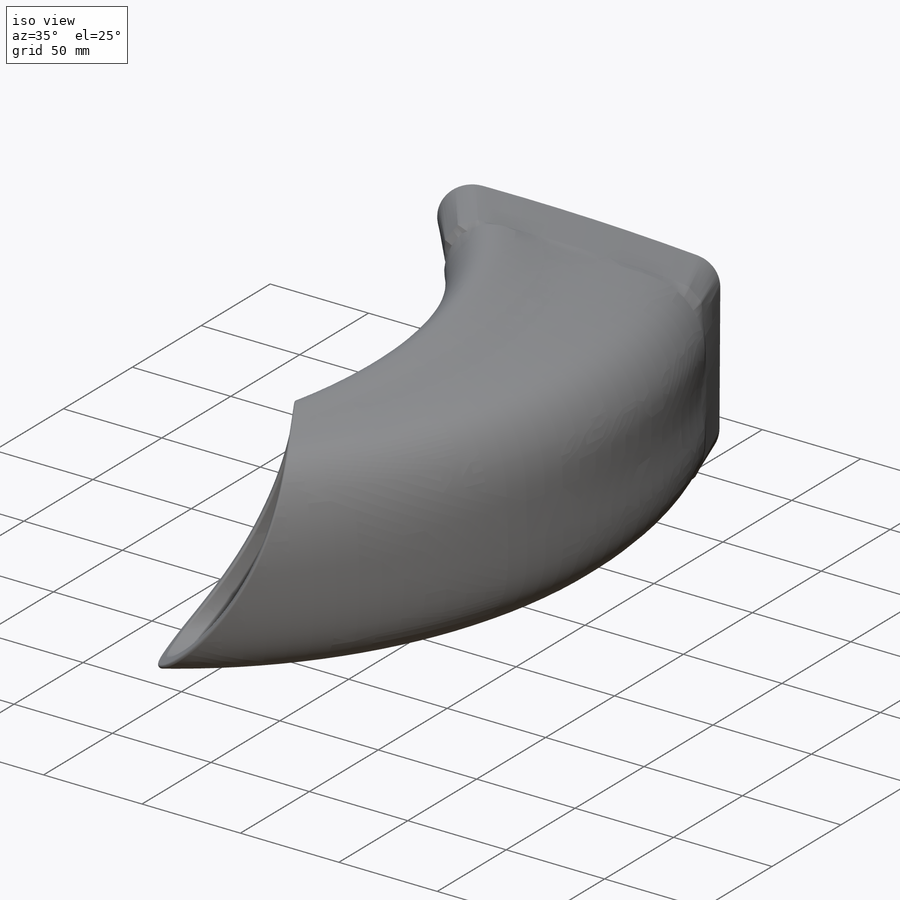
[diagram: iso view]
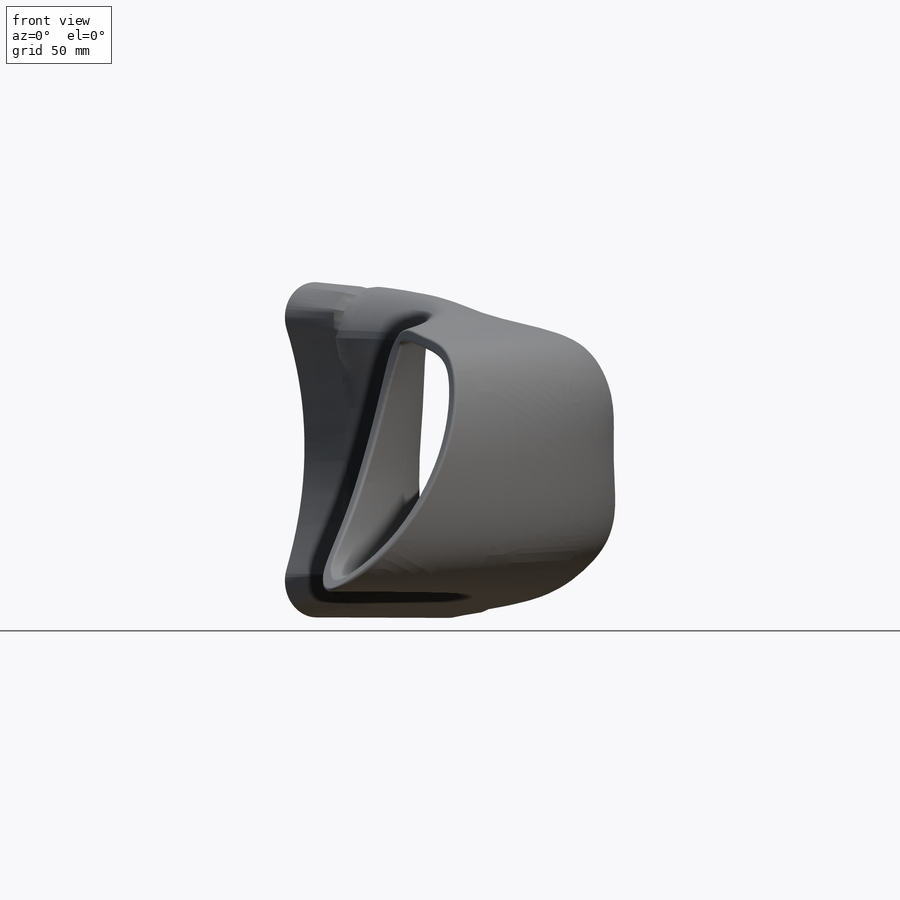
[diagram: front view]
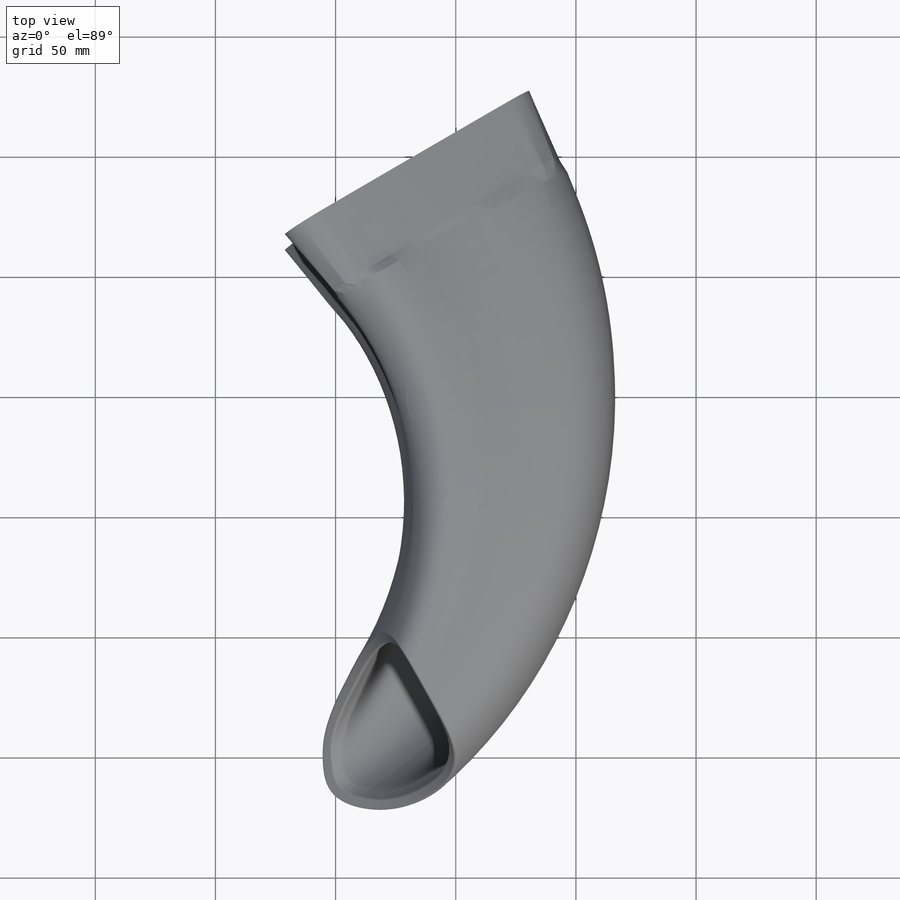
[diagram: top view]
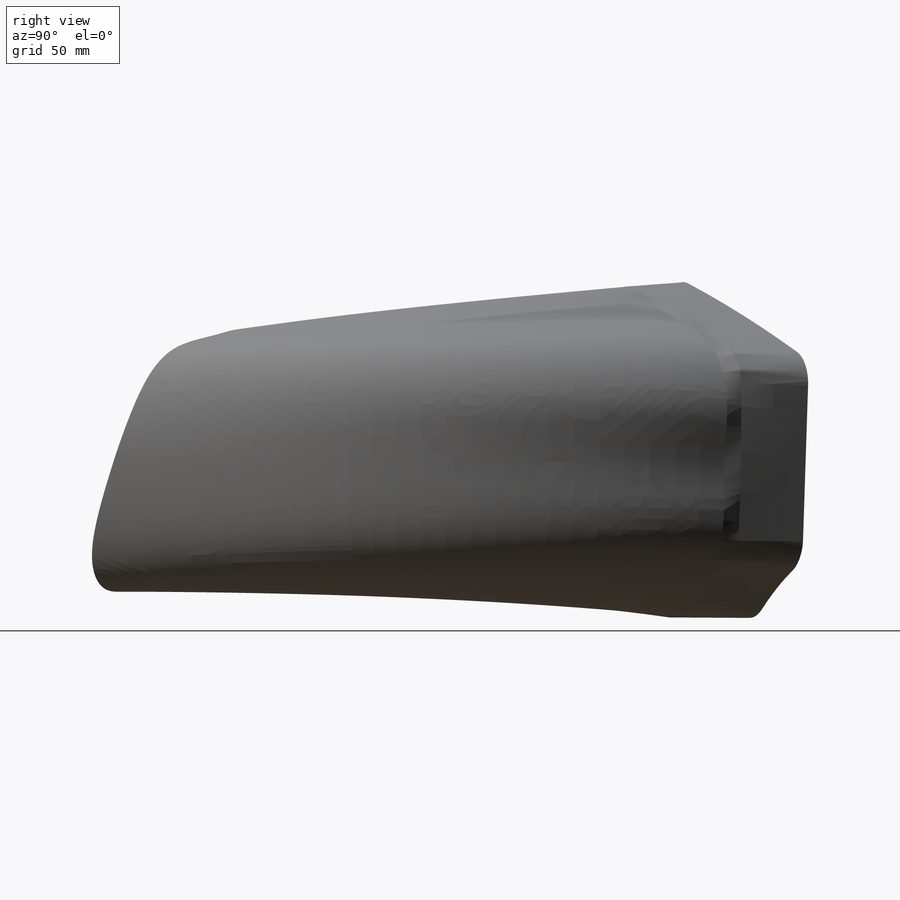
[diagram: right view]
SOLIDWORKS PART (.sldprt)
format: sldprt  version: not decoded by parser v0  size: 647,680 bytes
history: native  units: mm
features: sketch x4, cut_extrude x2, fillet x2, material x1, plane x1, shell x1 (+11 scaffold rows collapsed)
feature tree (22):
  scaffold x11  (default folders/planes/origin — collapsed)
  material  "Material <not specified>"
  sketch  "Sketch1"
  plane  "Plane1"  Offset=300mm
  sketch  "Sketch2"
  shell  "Shell1"  Thickness=5mm
  sketch  "Sketch3"
  cut_extrude  "Cut-Extrude1"  Depth=140mm
  sketch  "Sketch4"
  cut_extrude  "Cut-Extrude2"  Depth=266mm
  fillet  "Fillet2"  Radius=1mm
  fillet  "Fillet3"  Radius=1mm
decode coverage: 5 of 9 modeling features carry decoded parameters
note: suppression state not decoded; provenance and decode notes live in map.json
